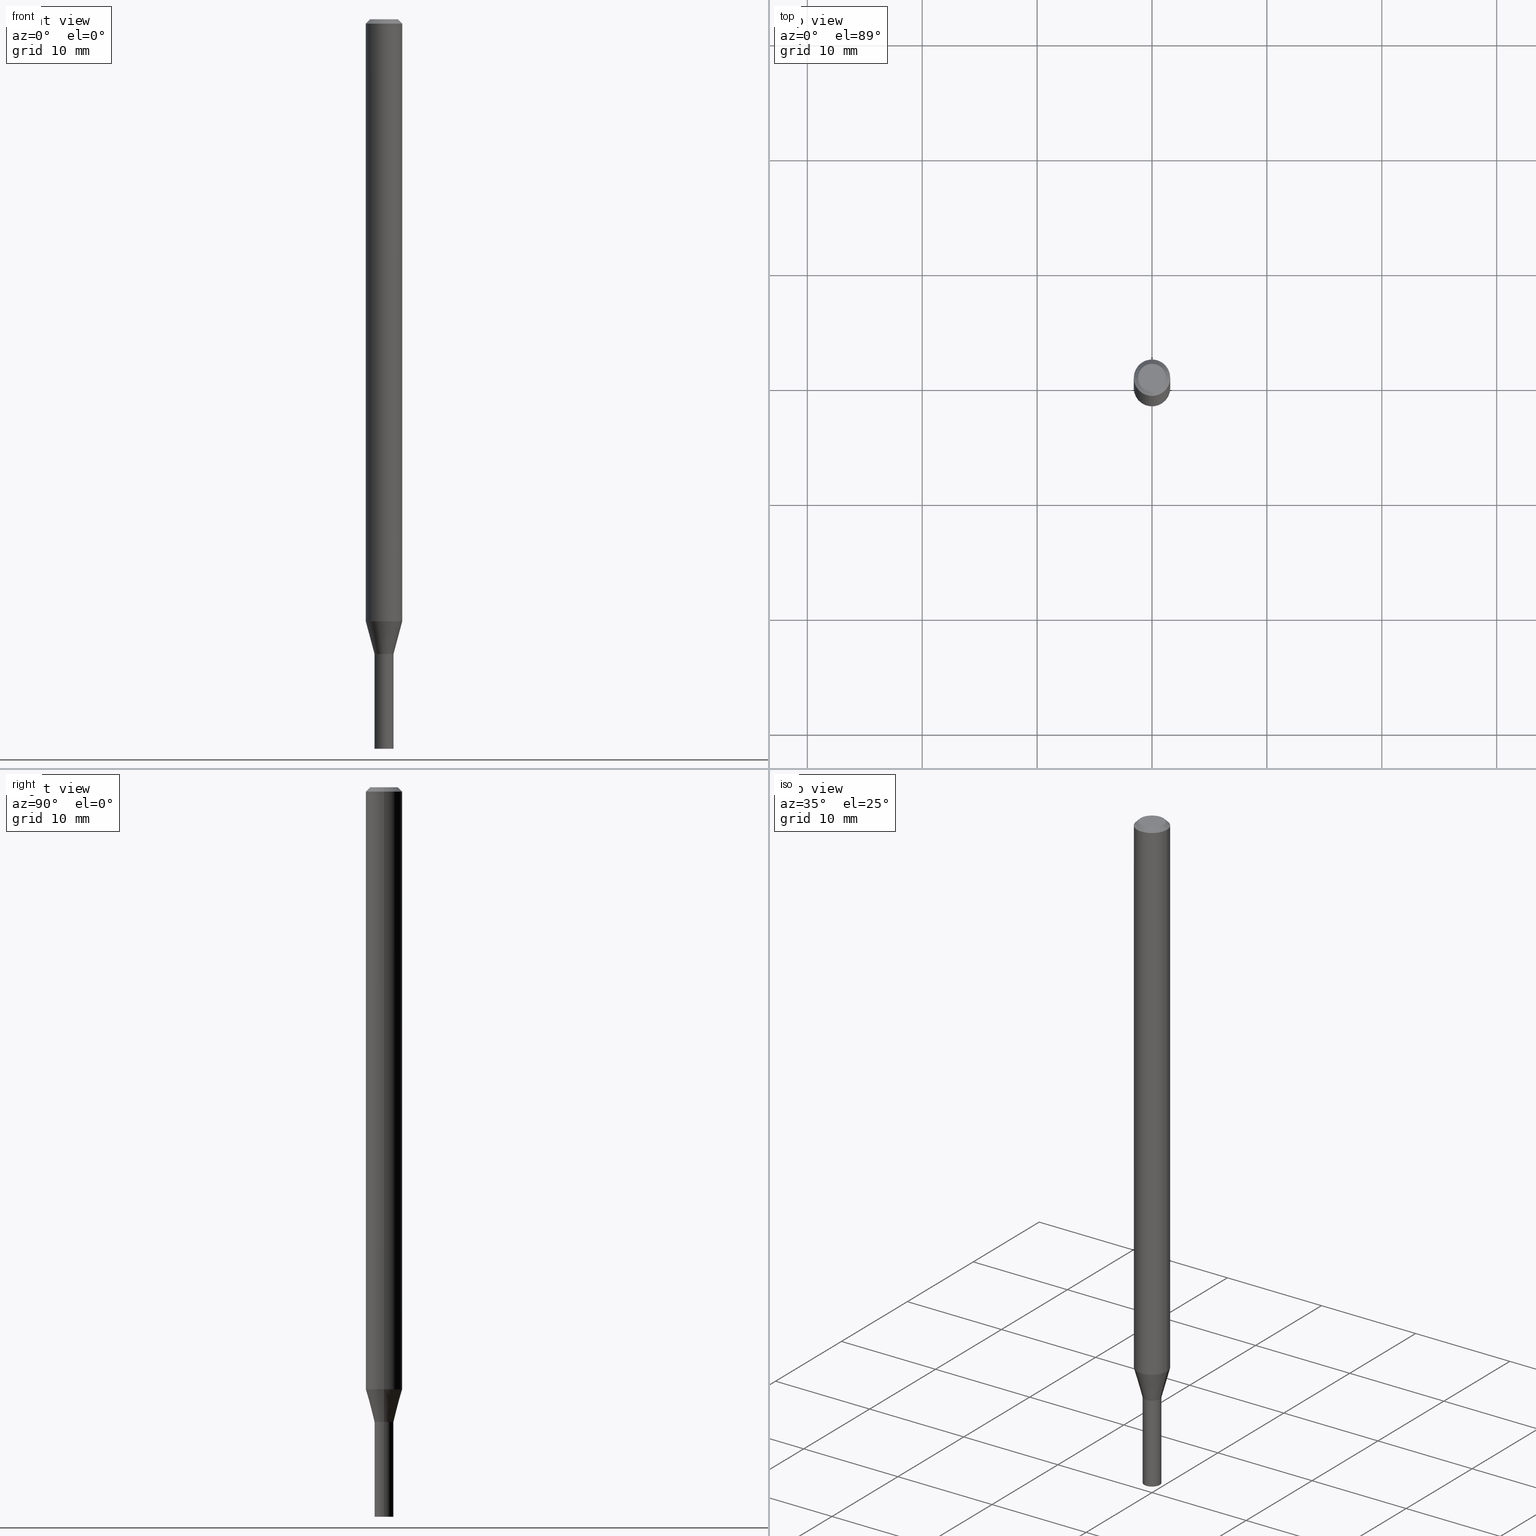
[diagram: canonical four-view strip — front | top / right | iso, engineering-drawing reading convention]
A machine part, canonical four-view strip (front | top / right | iso — engineering-drawing reading convention). The complete STEP part file that produces these views, byte-faithful:
ISO-10303-21;
HEADER;
FILE_DESCRIPTION (( 'STEP AP203' ),
    '1' );
FILE_NAME ('01241.STEP',
    '2024-03-20T00:26:47',
    ( '' ),
    ( '' ),
    'SwSTEP 2.0',
    'SolidWorks 2023',
    '' );
FILE_SCHEMA (( 'CONFIG_CONTROL_DESIGN' ));
ENDSEC;

DATA;
#1 = DIRECTION ( 'NONE',  ( 1.000000000000000000, 0.000000000000000000, 0.000000000000000000 ) ) ;
#2 = CARTESIAN_POINT ( 'NONE',  ( 0.03250000000000019540, -7.820918199008646799E-15, -2.175000000000000266 ) ) ;
#3 = DIRECTION ( 'NONE',  ( 2.445468806185136597E-29, -3.491481338843145583E-15, -1.000000000000000000 ) ) ;
#4 = AXIS2_PLACEMENT_3D ( 'NONE', #137, #19, #167 ) ;
#5 = DIRECTION ( 'NONE',  ( -2.445468806185136877E-29, 3.491481338843145188E-15, 1.000000000000000000 ) ) ;
#6 = AXIS2_PLACEMENT_3D ( 'NONE', #97, #309, #243 ) ;
#7 = LOCAL_TIME ( 20, 26, 47.00000000000000000, #373 ) ;
#8 = CARTESIAN_POINT ( 'NONE',  ( -0.03250000000000000111, -7.930411240423821035E-15, -2.175000000000000266 ) ) ;
#9 = PLANE ( 'NONE',  #212 ) ;
#10 = ORIENTED_EDGE ( 'NONE', *, *, #352, .F. ) ;
#11 = CARTESIAN_POINT ( 'NONE',  ( 0.000000000000000000, 0.000000000000000000, 0.000000000000000000 ) ) ;
#12 = CARTESIAN_POINT ( 'NONE',  ( -0.03250000000000019540, -7.061008326244176665E-15, -2.175000000000000266 ) ) ;
#13 = DATE_TIME_ROLE ( 'creation_date' ) ;
#14 = AXIS2_PLACEMENT_3D ( 'NONE', #22, #381, #337 ) ;
#15 = AXIS2_PLACEMENT_3D ( 'NONE', #173, #387, #206 ) ;
#16 = VERTEX_POINT ( 'NONE', #57 ) ;
#17 = ORIENTED_EDGE ( 'NONE', *, *, #37, .T. ) ;
#18 = ADVANCED_FACE ( 'NONE', ( #200 ), #358, .T. ) ;
#19 = DIRECTION ( 'NONE',  ( -2.445468806185136597E-29, 3.491481338843145583E-15, 1.000000000000000000 ) ) ;
#20 = AXIS2_PLACEMENT_3D ( 'NONE', #104, #3, #94 ) ;
#21 = DESIGN_CONTEXT ( 'detailed design', #392, 'design' ) ;
#22 = CARTESIAN_POINT ( 'NONE',  ( 5.318894653452672995E-29, -7.593971911983841869E-15, -2.175000000000000266 ) ) ;
#23 = DIRECTION ( 'NONE',  ( -2.445468806185136597E-29, 3.491481338843145583E-15, 1.000000000000000000 ) ) ;
#24 = DIRECTION ( 'NONE',  ( -2.445468806185136597E-29, 3.491481338843145583E-15, 1.000000000000000000 ) ) ;
#25 = ORIENTED_EDGE ( 'NONE', *, *, #461, .F. ) ;
#26 = DIRECTION ( 'NONE',  ( 1.000000000000000000, -6.982962677686262766E-15, 0.000000000000000000 ) ) ;
#27 = DIRECTION ( 'NONE',  ( -0.7071067811865520136, 2.468850131082303998E-15, -0.7071067811865430208 ) ) ;
#28 = CARTESIAN_POINT ( 'NONE',  ( -0.06250000000000000000, -3.183627069929565528E-15, -0.01499999999999999944 ) ) ;
#29 = LINE ( 'NONE', #423, #270 ) ;
#30 = CARTESIAN_POINT ( 'NONE',  ( 5.318894653452672995E-29, -7.593971911983841869E-15, -2.175000000000000266 ) ) ;
#31 = FACE_OUTER_BOUND ( 'NONE', #93, .T. ) ;
#32 = PERSON_AND_ORGANIZATION ( #303, #315 ) ;
#33 = DIRECTION ( 'NONE',  ( -1.000000000000000000, 6.982962677686265922E-15, -4.876176775795935793E-29 ) ) ;
#34 = CARTESIAN_POINT ( 'NONE',  ( 6.113672015462842613E-29, -8.728703347107864943E-15, -2.500000000000000000 ) ) ;
#35 = CIRCLE ( 'NONE', #253, 0.03250000000000000111 ) ;
#36 = DIRECTION ( 'NONE',  ( 0.7071067811865656694, -2.468850131082446387E-15, 0.7071067811865294761 ) ) ;
#37 = EDGE_CURVE ( 'NONE', #293, #177, #47, .T. ) ;
#38 = UNCERTAINTY_MEASURE_WITH_UNIT (LENGTH_MEASURE( 1.000000000000000082E-05 ), #217, 'distance_accuracy_value', 'NONE');
#39 = VECTOR ( 'NONE', #60, 39.37007874015748143 ) ;
#40 = LOCAL_TIME ( 20, 26, 47.00000000000000000, #83 ) ;
#41 = EDGE_LOOP ( 'NONE', ( #265, #209 ) ) ;
#42 = APPROVAL ( #320, 'UNSPECIFIED' ) ;
#43 = DATE_AND_TIME ( #224, #40 ) ;
#44 = VERTEX_POINT ( 'NONE', #308 ) ;
#45 = LENGTH_MEASURE_WITH_UNIT ( LENGTH_MEASURE( 0.02539999999999999897 ), #85 );
#46 = ORIENTED_EDGE ( 'NONE', *, *, #389, .T. ) ;
#47 = CIRCLE ( 'NONE', #4, 0.04749999999999999362 ) ;
#48 = AXIS2_PLACEMENT_3D ( 'NONE', #463, #356, #69 ) ;
#49 = ORIENTED_EDGE ( 'NONE', *, *, #446, .T. ) ;
#50 = ADVANCED_FACE ( 'NONE', ( #112 ), #450, .F. ) ;
#51 = CARTESIAN_POINT ( 'NONE',  ( -0.04749999999999999362, 3.578768372314207548E-16, -1.869615573468360244E-16 ) ) ;
#52 = ORIENTED_EDGE ( 'NONE', *, *, #432, .T. ) ;
#53 = PERSON_AND_ORGANIZATION_ROLE ( 'creator' ) ;
#54 = VERTEX_POINT ( 'NONE', #453 ) ;
#55 = PERSON_AND_ORGANIZATION ( #303, #315 ) ;
#56 = VECTOR ( 'NONE', #154, 39.37007874015748143 ) ;
#57 = CARTESIAN_POINT ( 'NONE',  ( -0.03249999999999992478, -7.361299782192388783E-15, -2.174500000000000099 ) ) ;
#58 = FACE_OUTER_BOUND ( 'NONE', #408, .T. ) ;
#59 = EDGE_CURVE ( 'NONE', #171, #44, #134, .T. ) ;
#60 = DIRECTION ( 'NONE',  ( 0.7071067811865520136, -7.319954787623270245E-15, -0.7071067811865430208 ) ) ;
#61 = DATE_AND_TIME ( #409, #183 ) ;
#62 = DIRECTION ( 'NONE',  ( 1.000000000000000000, -6.982962677686287221E-15, 0.000000000000000000 ) ) ;
#63 = CARTESIAN_POINT ( 'NONE',  ( -0.03200000000000000067, -7.363949009366499195E-15, -2.175000000000000266 ) ) ;
#64 = VERTEX_POINT ( 'NONE', #28 ) ;
#65 = CARTESIAN_POINT ( 'NONE',  ( 0.03249999999999992478, -7.819172458339224507E-15, -2.174500000000000099 ) ) ;
#66 = FACE_OUTER_BOUND ( 'NONE', #316, .T. ) ;
#67 = DIRECTION ( 'NONE',  ( 1.000000000000000000, -6.982962677686275388E-15, 0.000000000000000000 ) ) ;
#68 = CARTESIAN_POINT ( 'NONE',  ( 3.668203209277705088E-31, -5.237222008264718399E-17, -0.01499999999999999944 ) ) ;
#69 = DIRECTION ( 'NONE',  ( 1.000000000000000000, -6.982962677686267499E-15, 4.876176775795936353E-29 ) ) ;
#70 = DIRECTION ( 'NONE',  ( -2.445468806185136597E-29, 3.491481338843145583E-15, 1.000000000000000000 ) ) ;
#71 = DIRECTION ( 'NONE',  ( 1.000000000000000000, -6.982962677686265922E-15, 4.876176775795935793E-29 ) ) ;
#72 = ORIENTED_EDGE ( 'NONE', *, *, #98, .T. ) ;
#73 = CIRCLE ( 'NONE', #395, 0.03249999999999992478 ) ;
#74 = EDGE_CURVE ( 'NONE', #365, #16, #73, .T. ) ;
#75 = AXIS2_PLACEMENT_3D ( 'NONE', #347, #181, #213 ) ;
#76 = CC_DESIGN_APPROVAL ( #426, ( #334 ) ) ;
#77 = CYLINDRICAL_SURFACE ( 'NONE', #305, 0.03250000000000000111 ) ;
#78 = ADVANCED_FACE ( 'NONE', ( #435 ), #260, .T. ) ;
#79 = APPLICATION_CONTEXT ( 'configuration controlled 3d designs of mechanical parts and assemblies' ) ;
#80 = ADVANCED_FACE ( 'NONE', ( #397 ), #77, .T. ) ;
#81 = ORIENTED_EDGE ( 'NONE', *, *, #436, .F. ) ;
#82 = VECTOR ( 'NONE', #402, 39.37007874015748143 ) ;
#83 = COORDINATED_UNIVERSAL_TIME_OFFSET ( 5, 0, .BEHIND. ) ;
#84 = ORIENTED_EDGE ( 'NONE', *, *, #432, .F. ) ;
#85 =( LENGTH_UNIT ( ) NAMED_UNIT ( * ) SI_UNIT ( $, .METRE. ) );
#86 = PERSON_AND_ORGANIZATION ( #303, #315 ) ;
#87 = ORIENTED_EDGE ( 'NONE', *, *, #255, .F. ) ;
#88 = CC_DESIGN_PERSON_AND_ORGANIZATION_ASSIGNMENT ( #55, #367, ( #334 ) ) ;
#89 = AXIS2_PLACEMENT_3D ( 'NONE', #459, #391, #246 ) ;
#90 = CONICAL_SURFACE ( 'NONE', #20, 0.06250000000000000000, 0.7853981633974547183 ) ;
#91 = APPROVAL_PERSON_ORGANIZATION ( #156, #42, #297 ) ;
#92 = VERTEX_POINT ( 'NONE', #8 ) ;
#93 = EDGE_LOOP ( 'NONE', ( #417, #52, #197, #375 ) ) ;
#94 = DIRECTION ( 'NONE',  ( -1.000000000000000000, 6.982962677686266711E-15, 0.000000000000000000 ) ) ;
#95 = CC_DESIGN_PERSON_AND_ORGANIZATION_ASSIGNMENT ( #331, #403, ( #113 ) ) ;
#96 = ORIENTED_EDGE ( 'NONE', *, *, #389, .F. ) ;
#97 = CARTESIAN_POINT ( 'NONE',  ( 5.318894653452672995E-29, -7.593971911983841869E-15, -2.175000000000000266 ) ) ;
#98 = EDGE_CURVE ( 'NONE', #343, #92, #290, .T. ) ;
#99 = VECTOR ( 'NONE', #133, 39.37007874015748143 ) ;
#100 = EDGE_LOOP ( 'NONE', ( #84, #46, #164, #300 ) ) ;
#101 = DIRECTION ( 'NONE',  ( -2.445468806185136877E-29, 3.491481338843145188E-15, 1.000000000000000000 ) ) ;
#102 = ADVANCED_BREP_SHAPE_REPRESENTATION ( '01241', ( #198, #355, #396 ), #219 ) ;
#103 = DIRECTION ( 'NONE',  ( -2.445468806185136877E-29, 3.491481338843145188E-15, 1.000000000000000000 ) ) ;
#104 = CARTESIAN_POINT ( 'NONE',  ( 3.668203209277705088E-31, -5.237222008264718399E-17, -0.01499999999999999944 ) ) ;
#105 = CARTESIAN_POINT ( 'NONE',  ( 3.316907271900976096E-16, 0.04749999999999999362, -2.593261422684662377E-16 ) ) ;
#106 = DIRECTION ( 'NONE',  ( 1.000000000000000000, -6.982962677686258033E-15, 0.000000000000000000 ) ) ;
#107 = PLANE ( 'NONE',  #284 ) ;
#108 = EDGE_CURVE ( 'NONE', #235, #365, #151, .T. ) ;
#109 = CARTESIAN_POINT ( 'NONE',  ( 5.318894653452672995E-29, -7.593971911983841869E-15, -2.175000000000000266 ) ) ;
#110 = VECTOR ( 'NONE', #5, 39.37007874015748143 ) ;
#111 = DIRECTION ( 'NONE',  ( -2.438088387897960049E-29, 3.491481338843145188E-15, 1.000000000000000000 ) ) ;
#112 = FACE_OUTER_BOUND ( 'NONE', #41, .T. ) ;
#113 = PRODUCT_DEFINITION ( 'UNKNOWN', '', #122, #21 ) ;
#114 = CARTESIAN_POINT ( 'NONE',  ( 0.06250000000000000000, -4.888073874380388472E-16, -0.01499999999999999944 ) ) ;
#115 = DIMENSIONAL_EXPONENTS ( 1.000000000000000000, 0.000000000000000000, 0.000000000000000000, 0.000000000000000000, 0.000000000000000000, 0.000000000000000000, 0.000000000000000000 ) ;
#116 = AXIS2_PLACEMENT_3D ( 'NONE', #136, #462, #319 ) ;
#117 = DIRECTION ( 'NONE',  ( 1.000000000000000000, -6.982962677686266711E-15, 4.876176775795935793E-29 ) ) ;
#118 = EDGE_LOOP ( 'NONE', ( #96, #444, #226, #363 ) ) ;
#119 = CARTESIAN_POINT ( 'NONE',  ( 0.03200000000000000067, -7.817426717669802214E-15, -2.175000000000000266 ) ) ;
#120 = EDGE_CURVE ( 'NONE', #234, #242, #324, .T. ) ;
#121 = DIRECTION ( 'NONE',  ( -2.445468806185136597E-29, 3.491481338843145583E-15, 1.000000000000000000 ) ) ;
#122 = PRODUCT_DEFINITION_FORMATION_WITH_SPECIFIED_SOURCE ( 'ANY', '', #362, .NOT_KNOWN. ) ;
#123 = ORIENTED_EDGE ( 'NONE', *, *, #247, .F. ) ;
#124 = EDGE_LOOP ( 'NONE', ( #372, #49, #229, #359 ) ) ;
#125 = ORIENTED_EDGE ( 'NONE', *, *, #352, .T. ) ;
#126 = DATE_AND_TIME ( #449, #163 ) ;
#127 = EDGE_LOOP ( 'NONE', ( #304, #10 ) ) ;
#128 = EDGE_CURVE ( 'NONE', #177, #439, #275, .T. ) ;
#129 = SECURITY_CLASSIFICATION_LEVEL ( 'unclassified' ) ;
#130 = VERTEX_POINT ( 'NONE', #63 ) ;
#131 = PERSON_AND_ORGANIZATION ( #303, #315 ) ;
#132 = CARTESIAN_POINT ( 'NONE',  ( 2.269462870248568472E-16, 0.03249999999999240302, -2.175000000000000266 ) ) ;
#133 = DIRECTION ( 'NONE',  ( -2.445468806185136877E-29, 3.491481338843145188E-15, 1.000000000000000000 ) ) ;
#134 = LINE ( 'NONE', #420, #443 ) ;
#135 = CC_DESIGN_APPROVAL ( #42, ( #122 ) ) ;
#136 = CARTESIAN_POINT ( 'NONE',  ( 4.572086564474752109E-45, -6.527727885575223091E-31, -1.869615573468336332E-16 ) ) ;
#137 = CARTESIAN_POINT ( 'NONE',  ( 4.572086564474752109E-45, -6.527727885575223091E-31, -1.869615573468336332E-16 ) ) ;
#138 = CARTESIAN_POINT ( 'NONE',  ( 5.318894653452672995E-29, -7.593971911983841869E-15, -2.175000000000000266 ) ) ;
#139 = EDGE_CURVE ( 'NONE', #177, #293, #141, .T. ) ;
#140 = LINE ( 'NONE', #245, #99 ) ;
#141 = CIRCLE ( 'NONE', #116, 0.04749999999999999362 ) ;
#142 = CARTESIAN_POINT ( 'NONE',  ( -0.03200000000000000067, -7.366598236540609608E-15, -2.175000000000000266 ) ) ;
#143 = AXIS2_PLACEMENT_3D ( 'NONE', #349, #460, #422 ) ;
#144 = CIRCLE ( 'NONE', #406, 0.03200000000000000067 ) ;
#145 = DIRECTION ( 'NONE',  ( 1.000000000000000000, -6.982962677686266711E-15, 0.000000000000000000 ) ) ;
#146 = EDGE_CURVE ( 'NONE', #439, #64, #404, .T. ) ;
#147 = CARTESIAN_POINT ( 'NONE',  ( 0.000000000000000000, 0.000000000000000000, 0.000000000000000000 ) ) ;
#148 = CIRCLE ( 'NONE', #321, 0.03200000000000000067 ) ;
#149 = DIRECTION ( 'NONE',  ( 1.000000000000000000, -6.982962677686265922E-15, 4.876176775795935793E-29 ) ) ;
#150 = CC_DESIGN_PERSON_AND_ORGANIZATION_ASSIGNMENT ( #131, #230, ( #122 ) ) ;
#151 = LINE ( 'NONE', #119, #194 ) ;
#152 = APPROVAL_ROLE ( '' ) ;
#153 = EDGE_LOOP ( 'NONE', ( #199, #332, #328, #123 ) ) ;
#154 = DIRECTION ( 'NONE',  ( -0.7071067811865656694, 7.493145998870420424E-15, 0.7071067811865294761 ) ) ;
#155 = AXIS2_PLACEMENT_3D ( 'NONE', #30, #466, #279 ) ;
#156 = PERSON_AND_ORGANIZATION ( #303, #315 ) ;
#157 = EDGE_LOOP ( 'NONE', ( #262, #218, #376, #336 ) ) ;
#158 = ORIENTED_EDGE ( 'NONE', *, *, #341, .F. ) ;
#159 = APPROVAL_DATE_TIME ( #126, #42 ) ;
#160 = ORIENTED_EDGE ( 'NONE', *, *, #446, .F. ) ;
#161 = CLOSED_SHELL ( 'NONE', ( #257, #282, #80, #50 ) ) ;
#162 = CIRCLE ( 'NONE', #445, 0.03250000000000000111 ) ;
#163 = LOCAL_TIME ( 20, 26, 47.00000000000000000, #215 ) ;
#164 = ORIENTED_EDGE ( 'NONE', *, *, #207, .T. ) ;
#165 = DIRECTION ( 'NONE',  ( -2.445468806185136597E-29, 3.491481338843145583E-15, 1.000000000000000000 ) ) ;
#166 = DATE_TIME_ROLE ( 'classification_date' ) ;
#167 = DIRECTION ( 'NONE',  ( 1.000000000000000000, -6.982962677686267499E-15, 4.852736867747366768E-29 ) ) ;
#168 = DIRECTION ( 'NONE',  ( 1.000000000000000000, -6.982962677686275388E-15, 0.000000000000000000 ) ) ;
#169 = EDGE_CURVE ( 'NONE', #54, #64, #251, .T. ) ;
#170 = DIRECTION ( 'NONE',  ( 1.000000000000000000, -6.982962677686258033E-15, 0.000000000000000000 ) ) ;
#171 = VERTEX_POINT ( 'NONE', #276 ) ;
#172 = CYLINDRICAL_SURFACE ( 'NONE', #48, 0.03250000000000005662 ) ;
#173 = CARTESIAN_POINT ( 'NONE',  ( 5.317671919049580193E-29, -7.592226171314421154E-15, -2.174500000000000099 ) ) ;
#174 = CIRCLE ( 'NONE', #89, 0.06250000000000000000 ) ;
#175 = ADVANCED_FACE ( 'NONE', ( #241 ), #107, .F. ) ;
#176 = VECTOR ( 'NONE', #27, 39.37007874015748143 ) ;
#177 = VERTEX_POINT ( 'NONE', #237 ) ;
#178 = CARTESIAN_POINT ( 'NONE',  ( 5.318894653452672995E-29, -7.593971911983841869E-15, -2.175000000000000266 ) ) ;
#179 = CARTESIAN_POINT ( 'NONE',  ( 5.318894653452672995E-29, -7.593971911983841869E-15, -2.175000000000000266 ) ) ;
#180 = DIRECTION ( 'NONE',  ( -2.445468806185136597E-29, 3.491481338843145583E-15, 1.000000000000000000 ) ) ;
#181 = DIRECTION ( 'NONE',  ( -2.445468806185136597E-29, 3.491481338843145583E-15, 1.000000000000000000 ) ) ;
#182 = CIRCLE ( 'NONE', #143, 0.06250000000000000000 ) ;
#183 = LOCAL_TIME ( 20, 26, 47.00000000000000000, #447 ) ;
#184 = FACE_OUTER_BOUND ( 'NONE', #190, .T. ) ;
#185 = CIRCLE ( 'NONE', #259, 0.06250000000000000000 ) ;
#186 = APPROVAL_PERSON_ORGANIZATION ( #86, #426, #342 ) ;
#187 = DIRECTION ( 'NONE',  ( 1.000000000000000000, -6.982962677686265922E-15, 4.876176775795935232E-29 ) ) ;
#188 = DIRECTION ( 'NONE',  ( -2.445468806185136597E-29, 3.491481338843145583E-15, 1.000000000000000000 ) ) ;
#189 =( NAMED_UNIT ( * ) PLANE_ANGLE_UNIT ( ) SI_UNIT ( $, .RADIAN. ) );
#190 = EDGE_LOOP ( 'NONE', ( #158, #160 ) ) ;
#191 = EDGE_CURVE ( 'NONE', #54, #242, #174, .T. ) ;
#192 = CALENDAR_DATE ( 2024, 19, 3 ) ;
#193 = ORIENTED_EDGE ( 'NONE', *, *, #108, .T. ) ;
#194 = VECTOR ( 'NONE', #36, 39.37007874015748143 ) ;
#195 = AXIS2_PLACEMENT_3D ( 'NONE', #109, #250, #67 ) ;
#196 = DATE_AND_TIME ( #380, #7 ) ;
#197 = ORIENTED_EDGE ( 'NONE', *, *, #120, .T. ) ;
#198 = MANIFOLD_SOLID_BREP ( 'Body-Move/Copy2[1]', #161 ) ;
#199 = ORIENTED_EDGE ( 'NONE', *, *, #139, .F. ) ;
#200 = FACE_OUTER_BOUND ( 'NONE', #369, .T. ) ;
#201 = VECTOR ( 'NONE', #101, 39.37007874015748143 ) ;
#202 = AXIS2_PLACEMENT_3D ( 'NONE', #179, #386, #106 ) ;
#203 = EDGE_LOOP ( 'NONE', ( #17, #433 ) ) ;
#204 = CARTESIAN_POINT ( 'NONE',  ( 0.06250000000000000000, -7.639495506831999695E-15, -2.063038475772934532 ) ) ;
#205 = DIRECTION ( 'NONE',  ( -2.445468806185136597E-29, 3.491481338843145583E-15, 1.000000000000000000 ) ) ;
#206 = DIRECTION ( 'NONE',  ( 1.000000000000000000, -6.982962677686274599E-15, 0.000000000000000000 ) ) ;
#207 = EDGE_CURVE ( 'NONE', #16, #365, #431, .T. ) ;
#208 = CARTESIAN_POINT ( 'NONE',  ( 0.06250000000000000000, -4.364351673553916694E-16, 3.047610484872459871E-30 ) ) ;
#209 = ORIENTED_EDGE ( 'NONE', *, *, #405, .T. ) ;
#210 = CARTESIAN_POINT ( 'NONE',  ( 5.318894653452672995E-29, -7.593971911983841869E-15, -2.175000000000000266 ) ) ;
#211 = CARTESIAN_POINT ( 'NONE',  ( 0.000000000000000000, 0.000000000000000000, 0.000000000000000000 ) ) ;
#212 = AXIS2_PLACEMENT_3D ( 'NONE', #354, #111, #71 ) ;
#213 = DIRECTION ( 'NONE',  ( 1.000000000000000000, -6.982962677686266711E-15, 4.876176775795935793E-29 ) ) ;
#214 = CC_DESIGN_DATE_AND_TIME_ASSIGNMENT ( #43, #13, ( #113 ) ) ;
#215 = COORDINATED_UNIVERSAL_TIME_OFFSET ( 5, 0, .BEHIND. ) ;
#216 = CARTESIAN_POINT ( 'NONE',  ( 0.06250000000000000000, -4.811533449433679005E-16, -0.01499999999999999944 ) ) ;
#217 =( CONVERSION_BASED_UNIT ( 'INCH', #45 ) LENGTH_UNIT ( ) NAMED_UNIT ( #115 ) );
#218 = ORIENTED_EDGE ( 'NONE', *, *, #169, .T. ) ;
#219 =( GEOMETRIC_REPRESENTATION_CONTEXT ( 3 ) GLOBAL_UNCERTAINTY_ASSIGNED_CONTEXT ( ( #38 ) ) GLOBAL_UNIT_ASSIGNED_CONTEXT ( ( #217, #189, #427 ) ) REPRESENTATION_CONTEXT ( 'NONE', 'WORKASPACE' ) );
#220 = ADVANCED_FACE ( 'NONE', ( #244 ), #383, .T. ) ;
#221 = FACE_OUTER_BOUND ( 'NONE', #295, .T. ) ;
#222 = PERSON_AND_ORGANIZATION_ROLE ( 'design_owner' ) ;
#223 = CIRCLE ( 'NONE', #465, 0.03250000000000000111 ) ;
#224 = CALENDAR_DATE ( 2024, 19, 3 ) ;
#225 = PRODUCT_DEFINITION_SHAPE ( 'NONE', 'NONE',  #113 ) ;
#226 = ORIENTED_EDGE ( 'NONE', *, *, #374, .T. ) ;
#227 = CARTESIAN_POINT ( 'NONE',  ( -0.03250000000000000111, 2.309263891220325683E-16, -1.598653904332844407E-30 ) ) ;
#228 = DATE_AND_TIME ( #192, #326 ) ;
#229 = ORIENTED_EDGE ( 'NONE', *, *, #59, .T. ) ;
#230 = PERSON_AND_ORGANIZATION_ROLE ( 'design_supplier' ) ;
#231 = ORIENTED_EDGE ( 'NONE', *, *, #325, .T. ) ;
#232 = AXIS2_PLACEMENT_3D ( 'NONE', #344, #240, #168 ) ;
#233 = ADVANCED_FACE ( 'NONE', ( #31 ), #296, .T. ) ;
#234 = VERTEX_POINT ( 'NONE', #428 ) ;
#235 = VERTEX_POINT ( 'NONE', #379 ) ;
#236 = DIRECTION ( 'NONE',  ( 1.000000000000000000, -6.982962677686275388E-15, 0.000000000000000000 ) ) ;
#237 = CARTESIAN_POINT ( 'NONE',  ( 0.04749999999999999362, -4.035134999187581581E-16, -1.869615573468310694E-16 ) ) ;
#238 = CC_DESIGN_SECURITY_CLASSIFICATION ( #334, ( #122 ) ) ;
#239 = DIRECTION ( 'NONE',  ( 2.438088387897960049E-29, -3.491481338843145188E-15, -1.000000000000000000 ) ) ;
#240 = DIRECTION ( 'NONE',  ( -2.445468806185136597E-29, 3.491481338843145583E-15, 1.000000000000000000 ) ) ;
#241 = FACE_OUTER_BOUND ( 'NONE', #203, .T. ) ;
#242 = VERTEX_POINT ( 'NONE', #204 ) ;
#243 = DIRECTION ( 'NONE',  ( 1.000000000000000000, -6.982962677686271444E-15, 0.000000000000000000 ) ) ;
#244 = FACE_OUTER_BOUND ( 'NONE', #298, .T. ) ;
#245 = CARTESIAN_POINT ( 'NONE',  ( 0.03250000000000005662, -2.269462870248040921E-16, 1.584757452133682145E-30 ) ) ;
#246 = DIRECTION ( 'NONE',  ( 1.000000000000000000, -6.982962677686262766E-15, 0.000000000000000000 ) ) ;
#247 = EDGE_CURVE ( 'NONE', #293, #64, #314, .T. ) ;
#248 = AXIS2_PLACEMENT_3D ( 'NONE', #147, #283, #117 ) ;
#249 = CIRCLE ( 'NONE', #202, 0.03250000000000000111 ) ;
#250 = DIRECTION ( 'NONE',  ( -2.445468806185136597E-29, 3.491481338843145583E-15, 1.000000000000000000 ) ) ;
#251 = LINE ( 'NONE', #273, #201 ) ;
#252 = DIRECTION ( 'NONE',  ( 1.000000000000000000, -6.982962677686274599E-15, 0.000000000000000000 ) ) ;
#253 = AXIS2_PLACEMENT_3D ( 'NONE', #34, #180, #330 ) ;
#254 = CC_DESIGN_PERSON_AND_ORGANIZATION_ASSIGNMENT ( #371, #53, ( #122 ) ) ;
#255 = EDGE_CURVE ( 'NONE', #44, #92, #162, .T. ) ;
#256 = EDGE_LOOP ( 'NONE', ( #25, #125, #193, #414 ) ) ;
#257 = ADVANCED_FACE ( 'NONE', ( #66 ), #310, .T. ) ;
#258 = ORIENTED_EDGE ( 'NONE', *, *, #169, .F. ) ;
#259 = AXIS2_PLACEMENT_3D ( 'NONE', #418, #382, #26 ) ;
#260 = CYLINDRICAL_SURFACE ( 'NONE', #248, 0.06250000000000000000 ) ;
#261 = CARTESIAN_POINT ( 'NONE',  ( 0.000000000000000000, 0.000000000000000000, 0.000000000000000000 ) ) ;
#262 = ORIENTED_EDGE ( 'NONE', *, *, #436, .T. ) ;
#263 = ORIENTED_EDGE ( 'NONE', *, *, #247, .T. ) ;
#264 = APPROVAL_PERSON_ORGANIZATION ( #437, #335, #152 ) ;
#265 = ORIENTED_EDGE ( 'NONE', *, *, #255, .T. ) ;
#266 = ORIENTED_EDGE ( 'NONE', *, *, #128, .F. ) ;
#267 = ORIENTED_EDGE ( 'NONE', *, *, #398, .F. ) ;
#268 = DIRECTION ( 'NONE',  ( -2.445468806185136877E-29, 3.491481338843145188E-15, 1.000000000000000000 ) ) ;
#269 = CLOSED_SHELL ( 'NONE', ( #438, #18, #323, #78, #413, #233, #220, #292, #175, #452, #340, #421 ) ) ;
#270 = VECTOR ( 'NONE', #268, 39.37007874015748143 ) ;
#271 = ORIENTED_EDGE ( 'NONE', *, *, #289, .T. ) ;
#272 = DIRECTION ( 'NONE',  ( 1.000000000000000000, -6.982962677686271444E-15, 0.000000000000000000 ) ) ;
#273 = CARTESIAN_POINT ( 'NONE',  ( -0.06250000000000000000, 4.440892098500626162E-16, -3.074334431409316114E-30 ) ) ;
#274 = DIRECTION ( 'NONE',  ( -1.000000000000000000, 6.982962677686266711E-15, 0.000000000000000000 ) ) ;
#275 = LINE ( 'NONE', #216, #39 ) ;
#276 = CARTESIAN_POINT ( 'NONE',  ( 0.03250000000000000111, -8.955649634132668295E-15, -2.500000000000000000 ) ) ;
#277 = AXIS2_PLACEMENT_3D ( 'NONE', #281, #294, #149 ) ;
#278 = FACE_OUTER_BOUND ( 'NONE', #127, .T. ) ;
#279 = DIRECTION ( 'NONE',  ( 1.000000000000000000, -6.982962677686275388E-15, 0.000000000000000000 ) ) ;
#280 = ORIENTED_EDGE ( 'NONE', *, *, #191, .T. ) ;
#281 = CARTESIAN_POINT ( 'NONE',  ( 6.194428952736783458E-29, -8.613054816532157721E-15, -2.500000000000000000 ) ) ;
#282 = ADVANCED_FACE ( 'NONE', ( #184 ), #288, .F. ) ;
#283 = DIRECTION ( 'NONE',  ( -2.445468806185136597E-29, 3.491481338843145583E-15, 1.000000000000000000 ) ) ;
#284 = AXIS2_PLACEMENT_3D ( 'NONE', #105, #424, #33 ) ;
#285 = VECTOR ( 'NONE', #286, 39.37007874015748143 ) ;
#286 = DIRECTION ( 'NONE',  ( -0.2588190451025210725, 5.211531920934548675E-15, 0.9659258262890682012 ) ) ;
#287 = ORIENTED_EDGE ( 'NONE', *, *, #59, .F. ) ;
#288 = PLANE ( 'NONE',  #277 ) ;
#289 = EDGE_CURVE ( 'NONE', #442, #54, #394, .T. ) ;
#290 = LINE ( 'NONE', #227, #82 ) ;
#291 = COORDINATED_UNIVERSAL_TIME_OFFSET ( 5, 0, .BEHIND. ) ;
#292 = ADVANCED_FACE ( 'NONE', ( #221 ), #90, .T. ) ;
#293 = VERTEX_POINT ( 'NONE', #51 ) ;
#294 = DIRECTION ( 'NONE',  ( -2.438088387897960049E-29, 3.491481338843145188E-15, 1.000000000000000000 ) ) ;
#295 = EDGE_LOOP ( 'NONE', ( #266, #407, #263, #415 ) ) ;
#296 = CONICAL_SURFACE ( 'NONE', #155, 0.03250000000000019540, 0.2617993877991497409 ) ;
#297 = APPROVAL_ROLE ( '' ) ;
#298 = EDGE_LOOP ( 'NONE', ( #258, #280, #411, #267 ) ) ;
#299 = FACE_OUTER_BOUND ( 'NONE', #153, .T. ) ;
#300 = ORIENTED_EDGE ( 'NONE', *, *, #374, .F. ) ;
#301 = EDGE_CURVE ( 'NONE', #242, #439, #441, .T. ) ;
#302 = SHAPE_DEFINITION_REPRESENTATION ( #225, #102 ) ;
#303 = PERSON ( 'UNSPECIFIED', 'UNSPECIFIED', 'UNSPECIFIED', ('UNSPECIFIED'), ('UNSPECIFIED'), ('UNSPECIFIED') ) ;
#304 = ORIENTED_EDGE ( 'NONE', *, *, #366, .F. ) ;
#305 = AXIS2_PLACEMENT_3D ( 'NONE', #11, #121, #187 ) ;
#306 = ORIENTED_EDGE ( 'NONE', *, *, #461, .T. ) ;
#307 = DIRECTION ( 'NONE',  ( -2.445468806185136597E-29, 3.491481338843145583E-15, 1.000000000000000000 ) ) ;
#308 = CARTESIAN_POINT ( 'NONE',  ( 0.03250000000000000111, -7.820918199008645222E-15, -2.175000000000000266 ) ) ;
#309 = DIRECTION ( 'NONE',  ( -2.445468806185136597E-29, 3.491481338843145583E-15, 1.000000000000000000 ) ) ;
#310 = CYLINDRICAL_SURFACE ( 'NONE', #412, 0.03250000000000000111 ) ;
#311 = APPROVAL_STATUS ( 'not_yet_approved' ) ;
#312 = DIRECTION ( 'NONE',  ( -1.000000000000000000, 6.982962677686265922E-15, -4.876176775795935793E-29 ) ) ;
#313 = FACE_OUTER_BOUND ( 'NONE', #256, .T. ) ;
#314 = LINE ( 'NONE', #456, #176 ) ;
#315 = ORGANIZATION ( 'UNSPECIFIED', 'UNSPECIFIED', '' ) ;
#316 = EDGE_LOOP ( 'NONE', ( #410, #72, #87, #287 ) ) ;
#317 = CARTESIAN_POINT ( 'NONE',  ( -0.03250000000000000111, -7.930411240423821035E-15, -2.500000000000000000 ) ) ;
#318 = CC_DESIGN_PERSON_AND_ORGANIZATION_ASSIGNMENT ( #32, #222, ( #362 ) ) ;
#319 = DIRECTION ( 'NONE',  ( 1.000000000000000000, -6.982962677686267499E-15, 4.852736867747366768E-29 ) ) ;
#320 = APPROVAL_STATUS ( 'not_yet_approved' ) ;
#321 = AXIS2_PLACEMENT_3D ( 'NONE', #138, #458, #272 ) ;
#322 = DIRECTION ( 'NONE',  ( 0.000000000000000000, 0.000000000000000000, 1.000000000000000000 ) ) ;
#323 = ADVANCED_FACE ( 'NONE', ( #299 ), #361, .T. ) ;
#324 = LINE ( 'NONE', #2, #339 ) ;
#325 = EDGE_CURVE ( 'NONE', #234, #442, #378, .T. ) ;
#326 = LOCAL_TIME ( 20, 26, 47.00000000000000000, #291 ) ;
#327 = APPROVAL_STATUS ( 'not_yet_approved' ) ;
#328 = ORIENTED_EDGE ( 'NONE', *, *, #146, .T. ) ;
#329 = DIRECTION ( 'NONE',  ( 1.000000000000000000, -6.982962677686265922E-15, 4.876176775795935232E-29 ) ) ;
#330 = DIRECTION ( 'NONE',  ( 1.000000000000000000, -6.982962677686287221E-15, 0.000000000000000000 ) ) ;
#331 = PERSON_AND_ORGANIZATION ( #303, #315 ) ;
#332 = ORIENTED_EDGE ( 'NONE', *, *, #128, .T. ) ;
#333 = AXIS2_PLACEMENT_3D ( 'NONE', #390, #205, #353 ) ;
#334 = SECURITY_CLASSIFICATION ( '', '', #129 ) ;
#335 = APPROVAL ( #327, 'UNSPECIFIED' ) ;
#336 = ORIENTED_EDGE ( 'NONE', *, *, #301, .F. ) ;
#337 = DIRECTION ( 'NONE',  ( 1.000000000000000000, -6.982962677686271444E-15, 0.000000000000000000 ) ) ;
#338 = CARTESIAN_POINT ( 'NONE',  ( 3.668203209277705088E-31, -5.237222008264718399E-17, -0.01499999999999999944 ) ) ;
#339 = VECTOR ( 'NONE', #350, 39.37007874015748143 ) ;
#340 = ADVANCED_FACE ( 'NONE', ( #313 ), #351, .T. ) ;
#341 = EDGE_CURVE ( 'NONE', #171, #343, #223, .T. ) ;
#342 = APPROVAL_ROLE ( '' ) ;
#343 = VERTEX_POINT ( 'NONE', #317 ) ;
#344 = CARTESIAN_POINT ( 'NONE',  ( 5.318894653452672995E-29, -7.593971911983841869E-15, -2.175000000000000266 ) ) ;
#345 = CARTESIAN_POINT ( 'NONE',  ( 5.318894653452672995E-29, -7.593971911983841869E-15, -2.175000000000000266 ) ) ;
#346 = ORIENTED_EDGE ( 'NONE', *, *, #108, .F. ) ;
#347 = CARTESIAN_POINT ( 'NONE',  ( 0.000000000000000000, 0.000000000000000000, 0.000000000000000000 ) ) ;
#348 = ORIENTED_EDGE ( 'NONE', *, *, #120, .F. ) ;
#349 = CARTESIAN_POINT ( 'NONE',  ( 3.668203209277705088E-31, -5.237222008264718399E-17, -0.01499999999999999944 ) ) ;
#350 = DIRECTION ( 'NONE',  ( 0.2588190451025210725, 1.565188264969624137E-15, 0.9659258262890682012 ) ) ;
#351 = CONICAL_SURFACE ( 'NONE', #6, 0.03200000000000000067, 0.7853981633974739252 ) ;
#352 = EDGE_CURVE ( 'NONE', #130, #235, #148, .T. ) ;
#353 = DIRECTION ( 'NONE',  ( 1.000000000000000000, -6.982962677686267499E-15, 4.876176775795936353E-29 ) ) ;
#354 = CARTESIAN_POINT ( 'NONE',  ( 5.318894653452672995E-29, -7.593971911983841869E-15, -2.175000000000000266 ) ) ;
#355 = MANIFOLD_SOLID_BREP ( 'Body-Move/Copy2[2]', #269 ) ;
#356 = DIRECTION ( 'NONE',  ( -2.445468806185136597E-29, 3.491481338843145583E-15, 1.000000000000000000 ) ) ;
#357 = PRODUCT_RELATED_PRODUCT_CATEGORY ( 'detail', '', ( #362 ) ) ;
#358 = CONICAL_SURFACE ( 'NONE', #14, 0.03200000000000000067, 0.7853981633974739252 ) ;
#359 = ORIENTED_EDGE ( 'NONE', *, *, #405, .F. ) ;
#360 = APPLICATION_PROTOCOL_DEFINITION ( 'international standard', 'config_control_design', 1994, #392 ) ;
#361 = CONICAL_SURFACE ( 'NONE', #425, 0.06250000000000000000, 0.7853981633974547183 ) ;
#362 = PRODUCT ( '01241', '01241', '', ( #399 ) ) ;
#363 = ORIENTED_EDGE ( 'NONE', *, *, #74, .T. ) ;
#364 = APPROVAL_DATE_TIME ( #228, #335 ) ;
#365 = VERTEX_POINT ( 'NONE', #65 ) ;
#366 = EDGE_CURVE ( 'NONE', #235, #130, #144, .T. ) ;
#367 = PERSON_AND_ORGANIZATION_ROLE ( 'classification_officer' ) ;
#368 = AXIS2_PLACEMENT_3D ( 'NONE', #68, #70, #145 ) ;
#369 = EDGE_LOOP ( 'NONE', ( #384, #306, #400, #346 ) ) ;
#370 = CONICAL_SURFACE ( 'NONE', #195, 0.03250000000000019540, 0.2617993877991497409 ) ;
#371 = PERSON_AND_ORGANIZATION ( #303, #315 ) ;
#372 = ORIENTED_EDGE ( 'NONE', *, *, #98, .F. ) ;
#373 = COORDINATED_UNIVERSAL_TIME_OFFSET ( 5, 0, .BEHIND. ) ;
#374 = EDGE_CURVE ( 'NONE', #234, #365, #140, .T. ) ;
#375 = ORIENTED_EDGE ( 'NONE', *, *, #191, .F. ) ;
#376 = ORIENTED_EDGE ( 'NONE', *, *, #146, .F. ) ;
#377 = DIRECTION ( 'NONE',  ( 1.000000000000000000, -6.982962677686271444E-15, 0.000000000000000000 ) ) ;
#378 = CIRCLE ( 'NONE', #455, 0.03250000000000019540 ) ;
#379 = CARTESIAN_POINT ( 'NONE',  ( 0.03200000000000000067, -7.817426717669802214E-15, -2.175000000000000266 ) ) ;
#380 = CALENDAR_DATE ( 2024, 19, 3 ) ;
#381 = DIRECTION ( 'NONE',  ( -2.445468806185136597E-29, 3.491481338843145583E-15, 1.000000000000000000 ) ) ;
#382 = DIRECTION ( 'NONE',  ( -2.445468806185136597E-29, 3.491481338843145583E-15, 1.000000000000000000 ) ) ;
#383 = CYLINDRICAL_SURFACE ( 'NONE', #75, 0.06250000000000000000 ) ;
#384 = ORIENTED_EDGE ( 'NONE', *, *, #366, .T. ) ;
#385 = CARTESIAN_POINT ( 'NONE',  ( 6.113672015462842613E-29, -8.728703347107864943E-15, -2.500000000000000000 ) ) ;
#386 = DIRECTION ( 'NONE',  ( -2.445468806185136597E-29, 3.491481338843145583E-15, 1.000000000000000000 ) ) ;
#387 = DIRECTION ( 'NONE',  ( -2.445468806185136597E-29, 3.491481338843145583E-15, 1.000000000000000000 ) ) ;
#388 = CC_DESIGN_APPROVAL ( #335, ( #113 ) ) ;
#389 = EDGE_CURVE ( 'NONE', #442, #16, #29, .T. ) ;
#390 = CARTESIAN_POINT ( 'NONE',  ( 0.000000000000000000, 0.000000000000000000, 0.000000000000000000 ) ) ;
#391 = DIRECTION ( 'NONE',  ( -2.445468806185136597E-29, 3.491481338843145583E-15, 1.000000000000000000 ) ) ;
#392 = APPLICATION_CONTEXT ( 'configuration controlled 3d designs of mechanical parts and assemblies' ) ;
#393 = CC_DESIGN_DATE_AND_TIME_ASSIGNMENT ( #61, #166, ( #334 ) ) ;
#394 = LINE ( 'NONE', #401, #285 ) ;
#395 = AXIS2_PLACEMENT_3D ( 'NONE', #457, #429, #252 ) ;
#396 = AXIS2_PLACEMENT_3D ( 'NONE', #261, #322, #1 ) ;
#397 = FACE_OUTER_BOUND ( 'NONE', #124, .T. ) ;
#398 = EDGE_CURVE ( 'NONE', #64, #439, #182, .T. ) ;
#399 = MECHANICAL_CONTEXT ( 'NONE', #79, 'mechanical' ) ;
#400 = ORIENTED_EDGE ( 'NONE', *, *, #74, .F. ) ;
#401 = CARTESIAN_POINT ( 'NONE',  ( -0.03250000000000019540, -7.363045522861807920E-15, -2.175000000000000266 ) ) ;
#402 = DIRECTION ( 'NONE',  ( -2.445468806185136877E-29, 3.491481338843145188E-15, 1.000000000000000000 ) ) ;
#403 = PERSON_AND_ORGANIZATION_ROLE ( 'creator' ) ;
#404 = CIRCLE ( 'NONE', #368, 0.06250000000000000000 ) ;
#405 = EDGE_CURVE ( 'NONE', #92, #44, #249, .T. ) ;
#406 = AXIS2_PLACEMENT_3D ( 'NONE', #210, #307, #377 ) ;
#407 = ORIENTED_EDGE ( 'NONE', *, *, #37, .F. ) ;
#408 = EDGE_LOOP ( 'NONE', ( #231, #271, #81, #348 ) ) ;
#409 = CALENDAR_DATE ( 2024, 19, 3 ) ;
#410 = ORIENTED_EDGE ( 'NONE', *, *, #341, .T. ) ;
#411 = ORIENTED_EDGE ( 'NONE', *, *, #301, .T. ) ;
#412 = AXIS2_PLACEMENT_3D ( 'NONE', #211, #188, #329 ) ;
#413 = ADVANCED_FACE ( 'NONE', ( #58 ), #370, .T. ) ;
#414 = ORIENTED_EDGE ( 'NONE', *, *, #207, .F. ) ;
#415 = ORIENTED_EDGE ( 'NONE', *, *, #398, .T. ) ;
#416 = DIRECTION ( 'NONE',  ( 2.445468806185136597E-29, -3.491481338843145583E-15, -1.000000000000000000 ) ) ;
#417 = ORIENTED_EDGE ( 'NONE', *, *, #289, .F. ) ;
#418 = CARTESIAN_POINT ( 'NONE',  ( 5.045096238462442621E-29, -7.203060339476608026E-15, -2.063038475772934532 ) ) ;
#419 = CIRCLE ( 'NONE', #232, 0.03250000000000019540 ) ;
#420 = CARTESIAN_POINT ( 'NONE',  ( 0.03250000000000000111, -2.269462870248036484E-16, 1.584757452133678993E-30 ) ) ;
#421 = ADVANCED_FACE ( 'NONE', ( #448 ), #451, .F. ) ;
#422 = DIRECTION ( 'NONE',  ( 1.000000000000000000, -6.982962677686266711E-15, 0.000000000000000000 ) ) ;
#423 = CARTESIAN_POINT ( 'NONE',  ( -0.03250000000000005662, 2.309263891220329627E-16, -1.598653904332847210E-30 ) ) ;
#424 = DIRECTION ( 'NONE',  ( 2.438088387897960049E-29, -3.491481338843145188E-15, -1.000000000000000000 ) ) ;
#425 = AXIS2_PLACEMENT_3D ( 'NONE', #338, #416, #274 ) ;
#426 = APPROVAL ( #311, 'UNSPECIFIED' ) ;
#427 =( NAMED_UNIT ( * ) SI_UNIT ( $, .STERADIAN. ) SOLID_ANGLE_UNIT ( ) );
#428 = CARTESIAN_POINT ( 'NONE',  ( 0.03250000000000019540, -7.820918199008646799E-15, -2.175000000000000266 ) ) ;
#429 = DIRECTION ( 'NONE',  ( -2.445468806185136597E-29, 3.491481338843145583E-15, 1.000000000000000000 ) ) ;
#430 = APPLICATION_PROTOCOL_DEFINITION ( 'international standard', 'config_control_design', 1994, #79 ) ;
#431 = CIRCLE ( 'NONE', #15, 0.03249999999999992478 ) ;
#432 = EDGE_CURVE ( 'NONE', #442, #234, #419, .T. ) ;
#433 = ORIENTED_EDGE ( 'NONE', *, *, #139, .T. ) ;
#434 = LINE ( 'NONE', #142, #56 ) ;
#435 = FACE_OUTER_BOUND ( 'NONE', #157, .T. ) ;
#436 = EDGE_CURVE ( 'NONE', #242, #54, #185, .T. ) ;
#437 = PERSON_AND_ORGANIZATION ( #303, #315 ) ;
#438 = ADVANCED_FACE ( 'NONE', ( #454 ), #172, .F. ) ;
#439 = VERTEX_POINT ( 'NONE', #114 ) ;
#440 = APPROVAL_DATE_TIME ( #196, #426 ) ;
#441 = LINE ( 'NONE', #208, #110 ) ;
#442 = VERTEX_POINT ( 'NONE', #12 ) ;
#443 = VECTOR ( 'NONE', #103, 39.37007874015748143 ) ;
#444 = ORIENTED_EDGE ( 'NONE', *, *, #325, .F. ) ;
#445 = AXIS2_PLACEMENT_3D ( 'NONE', #345, #24, #170 ) ;
#446 = EDGE_CURVE ( 'NONE', #343, #171, #35, .T. ) ;
#447 = COORDINATED_UNIVERSAL_TIME_OFFSET ( 5, 0, .BEHIND. ) ;
#448 = FACE_OUTER_BOUND ( 'NONE', #118, .T. ) ;
#449 = CALENDAR_DATE ( 2024, 19, 3 ) ;
#450 = PLANE ( 'NONE',  #464 ) ;
#451 = CYLINDRICAL_SURFACE ( 'NONE', #333, 0.03250000000000005662 ) ;
#452 = ADVANCED_FACE ( 'NONE', ( #278 ), #9, .F. ) ;
#453 = CARTESIAN_POINT ( 'NONE',  ( -0.06250000000000000000, -6.758971129626546198E-15, -2.063038475772934532 ) ) ;
#454 = FACE_OUTER_BOUND ( 'NONE', #100, .T. ) ;
#455 = AXIS2_PLACEMENT_3D ( 'NONE', #178, #165, #236 ) ;
#456 = CARTESIAN_POINT ( 'NONE',  ( -0.06250000000000000000, 3.840629472727444916E-16, -0.01499999999999999944 ) ) ;
#457 = CARTESIAN_POINT ( 'NONE',  ( 5.317671919049580193E-29, -7.592226171314421154E-15, -2.174500000000000099 ) ) ;
#458 = DIRECTION ( 'NONE',  ( -2.445468806185136597E-29, 3.491481338843145583E-15, 1.000000000000000000 ) ) ;
#459 = CARTESIAN_POINT ( 'NONE',  ( 5.045096238462442621E-29, -7.203060339476608026E-15, -2.063038475772934532 ) ) ;
#460 = DIRECTION ( 'NONE',  ( -2.445468806185136597E-29, 3.491481338843145583E-15, 1.000000000000000000 ) ) ;
#461 = EDGE_CURVE ( 'NONE', #130, #16, #434, .T. ) ;
#462 = DIRECTION ( 'NONE',  ( -2.445468806185136597E-29, 3.491481338843145583E-15, 1.000000000000000000 ) ) ;
#463 = CARTESIAN_POINT ( 'NONE',  ( 0.000000000000000000, 0.000000000000000000, 0.000000000000000000 ) ) ;
#464 = AXIS2_PLACEMENT_3D ( 'NONE', #132, #239, #312 ) ;
#465 = AXIS2_PLACEMENT_3D ( 'NONE', #385, #23, #62 ) ;
#466 = DIRECTION ( 'NONE',  ( -2.445468806185136597E-29, 3.491481338843145583E-15, 1.000000000000000000 ) ) ;
ENDSEC;
END-ISO-10303-21;
